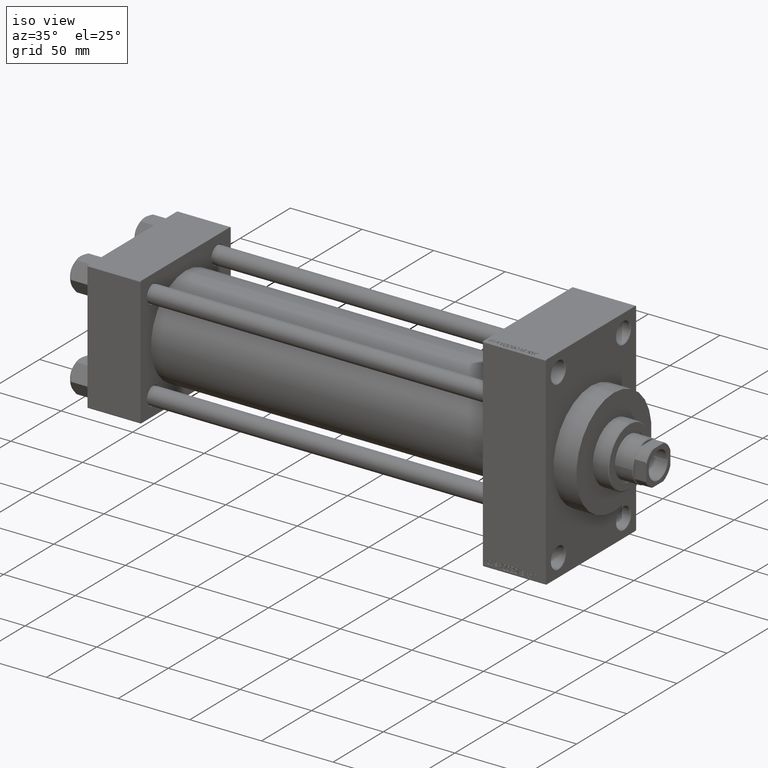
[diagram: clean part render]
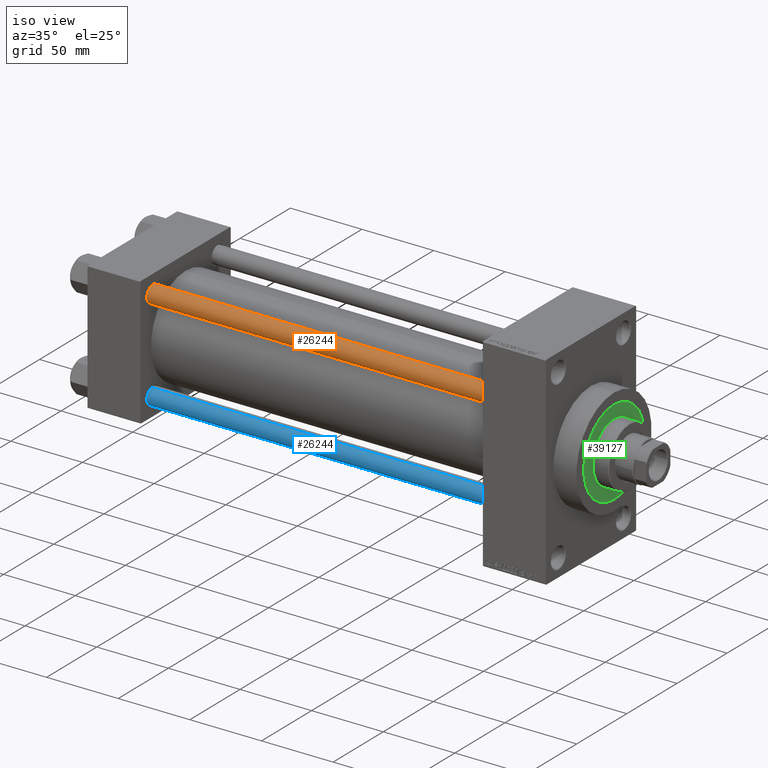
[diagram: same view with three faces highlighted in distinct colors, each labeled with its STEP entity id]
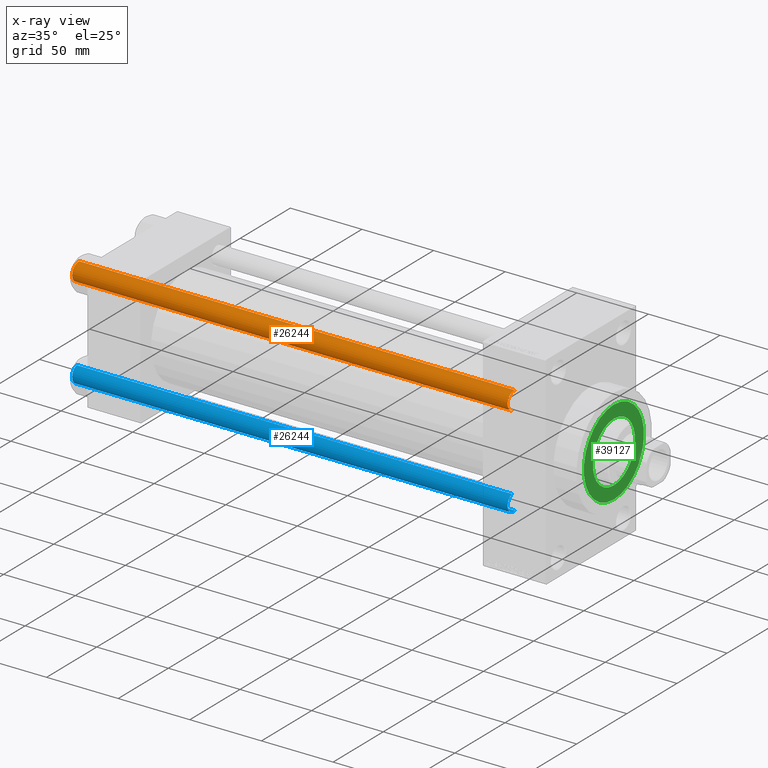
[diagram: x-ray of the same camera — body ghosted, the three highlighted faces saturated]
A machine part, iso view with three faces highlighted in distinct colors.
The next image is the same camera in x-ray (body ghosted, the three faces saturated) — at least one of them is partly hidden behind the body in this view.
Their STEP definitions:

[orange] entity #26244 — the highlighted cylindrical surface (edge-blend (fillet) strip) has radius 6 mm, axis along (1, 0, 0).
#65 = CARTESIAN_POINT ( 'NONE',  ( 0.000000000000000000, 0.000000000000000000, 305.0000000000000000 ) ) ;
#1472 = CARTESIAN_POINT ( 'NONE',  ( -6.000000000000000888, 0.000000000000000000, 304.5000000000000000 ) ) ;
#3404 = CYLINDRICAL_SURFACE ( 'NONE', #20236, 6.000000000000000888 ) ;
#3856 = DIRECTION ( 'NONE',  ( 1.000000000000000000, 0.000000000000000000, 0.000000000000000000 ) ) ;
#5360 = CARTESIAN_POINT ( 'NONE',  ( 6.000000000000000888, 7.347880794884120722E-16, 0.5000000000000004441 ) ) ;
#5750 = AXIS2_PLACEMENT_3D ( 'NONE', #31550, #12933, #31078 ) ;
#5988 = AXIS2_PLACEMENT_3D ( 'NONE', #40145, #15058, #3856 ) ;
#8247 = EDGE_CURVE ( 'NONE', #19464, #33449, #41802, .T. ) ;
#12933 = DIRECTION ( 'NONE',  ( 0.000000000000000000, 0.000000000000000000, -1.000000000000000000 ) ) ;
#13560 = CARTESIAN_POINT ( 'NONE',  ( -6.000000000000000888, 0.000000000000000000, 0.5000000000000004441 ) ) ;
#14081 = LINE ( 'NONE', #29125, #32040 ) ;
#14850 = FACE_OUTER_BOUND ( 'NONE', #35730, .T. ) ;
#15058 = DIRECTION ( 'NONE',  ( -0.000000000000000000, -0.000000000000000000, 1.000000000000000000 ) ) ;
#16302 = ORIENTED_EDGE ( 'NONE', *, *, #8247, .T. ) ;
#16529 = ORIENTED_EDGE ( 'NONE', *, *, #42837, .F. ) ;
#17326 = ORIENTED_EDGE ( 'NONE', *, *, #46188, .T. ) ;
#18102 = LINE ( 'NONE', #29559, #38798 ) ;
#19464 = VERTEX_POINT ( 'NONE', #5360 ) ;
#20236 = AXIS2_PLACEMENT_3D ( 'NONE', #65, #21551, #32528 ) ;
#21551 = DIRECTION ( 'NONE',  ( -0.000000000000000000, -0.000000000000000000, -1.000000000000000000 ) ) ;
#24595 = CARTESIAN_POINT ( 'NONE',  ( 6.000000000000000888, 7.347880794884120722E-16, 304.5000000000000000 ) ) ;
#26244 = ADVANCED_FACE ( 'NONE', ( #14850 ), #3404, .T. ) ;
#29125 = CARTESIAN_POINT ( 'NONE',  ( 6.000000000000000888, 7.347880794884120722E-16, 305.0000000000000000 ) ) ;
#29559 = CARTESIAN_POINT ( 'NONE',  ( -6.000000000000000888, 0.000000000000000000, 305.0000000000000000 ) ) ;
#30454 = EDGE_CURVE ( 'NONE', #33005, #35109, #43881, .T. ) ;
#31078 = DIRECTION ( 'NONE',  ( 1.000000000000000000, 0.000000000000000000, 0.000000000000000000 ) ) ;
#31550 = CARTESIAN_POINT ( 'NONE',  ( 0.000000000000000000, 0.000000000000000000, 304.5000000000000000 ) ) ;
#32040 = VECTOR ( 'NONE', #36276, 1000.000000000000000 ) ;
#32528 = DIRECTION ( 'NONE',  ( -1.000000000000000000, 0.000000000000000000, 0.000000000000000000 ) ) ;
#33005 = VERTEX_POINT ( 'NONE', #1472 ) ;
#33449 = VERTEX_POINT ( 'NONE', #13560 ) ;
#35109 = VERTEX_POINT ( 'NONE', #24595 ) ;
#35552 = ORIENTED_EDGE ( 'NONE', *, *, #30454, .T. ) ;
#35730 = EDGE_LOOP ( 'NONE', ( #35552, #17326, #16302, #16529 ) ) ;
#36276 = DIRECTION ( 'NONE',  ( -0.000000000000000000, -0.000000000000000000, -1.000000000000000000 ) ) ;
#36954 = DIRECTION ( 'NONE',  ( -0.000000000000000000, -0.000000000000000000, -1.000000000000000000 ) ) ;
#38798 = VECTOR ( 'NONE', #36954, 1000.000000000000000 ) ;
#40145 = CARTESIAN_POINT ( 'NONE',  ( 0.000000000000000000, 0.000000000000000000, 0.5000000000000004441 ) ) ;
#41802 = CIRCLE ( 'NONE', #5988, 6.000000000000000888 ) ;
#42837 = EDGE_CURVE ( 'NONE', #33005, #33449, #18102, .T. ) ;
#43881 = CIRCLE ( 'NONE', #5750, 6.000000000000000888 ) ;
#46188 = EDGE_CURVE ( 'NONE', #35109, #19464, #14081, .T. ) ;

[blue] entity #26244 — the highlighted cylindrical surface (edge-blend (fillet) strip) has radius 6 mm, axis along (-1, 0, 0).
#65 = CARTESIAN_POINT ( 'NONE',  ( 0.000000000000000000, 0.000000000000000000, 305.0000000000000000 ) ) ;
#1472 = CARTESIAN_POINT ( 'NONE',  ( -6.000000000000000888, 0.000000000000000000, 304.5000000000000000 ) ) ;
#3404 = CYLINDRICAL_SURFACE ( 'NONE', #20236, 6.000000000000000888 ) ;
#3856 = DIRECTION ( 'NONE',  ( 1.000000000000000000, 0.000000000000000000, 0.000000000000000000 ) ) ;
#5360 = CARTESIAN_POINT ( 'NONE',  ( 6.000000000000000888, 7.347880794884120722E-16, 0.5000000000000004441 ) ) ;
#5750 = AXIS2_PLACEMENT_3D ( 'NONE', #31550, #12933, #31078 ) ;
#5988 = AXIS2_PLACEMENT_3D ( 'NONE', #40145, #15058, #3856 ) ;
#8247 = EDGE_CURVE ( 'NONE', #19464, #33449, #41802, .T. ) ;
#12933 = DIRECTION ( 'NONE',  ( 0.000000000000000000, 0.000000000000000000, -1.000000000000000000 ) ) ;
#13560 = CARTESIAN_POINT ( 'NONE',  ( -6.000000000000000888, 0.000000000000000000, 0.5000000000000004441 ) ) ;
#14081 = LINE ( 'NONE', #29125, #32040 ) ;
#14850 = FACE_OUTER_BOUND ( 'NONE', #35730, .T. ) ;
#15058 = DIRECTION ( 'NONE',  ( -0.000000000000000000, -0.000000000000000000, 1.000000000000000000 ) ) ;
#16302 = ORIENTED_EDGE ( 'NONE', *, *, #8247, .T. ) ;
#16529 = ORIENTED_EDGE ( 'NONE', *, *, #42837, .F. ) ;
#17326 = ORIENTED_EDGE ( 'NONE', *, *, #46188, .T. ) ;
#18102 = LINE ( 'NONE', #29559, #38798 ) ;
#19464 = VERTEX_POINT ( 'NONE', #5360 ) ;
#20236 = AXIS2_PLACEMENT_3D ( 'NONE', #65, #21551, #32528 ) ;
#21551 = DIRECTION ( 'NONE',  ( -0.000000000000000000, -0.000000000000000000, -1.000000000000000000 ) ) ;
#24595 = CARTESIAN_POINT ( 'NONE',  ( 6.000000000000000888, 7.347880794884120722E-16, 304.5000000000000000 ) ) ;
#26244 = ADVANCED_FACE ( 'NONE', ( #14850 ), #3404, .T. ) ;
#29125 = CARTESIAN_POINT ( 'NONE',  ( 6.000000000000000888, 7.347880794884120722E-16, 305.0000000000000000 ) ) ;
#29559 = CARTESIAN_POINT ( 'NONE',  ( -6.000000000000000888, 0.000000000000000000, 305.0000000000000000 ) ) ;
#30454 = EDGE_CURVE ( 'NONE', #33005, #35109, #43881, .T. ) ;
#31078 = DIRECTION ( 'NONE',  ( 1.000000000000000000, 0.000000000000000000, 0.000000000000000000 ) ) ;
#31550 = CARTESIAN_POINT ( 'NONE',  ( 0.000000000000000000, 0.000000000000000000, 304.5000000000000000 ) ) ;
#32040 = VECTOR ( 'NONE', #36276, 1000.000000000000000 ) ;
#32528 = DIRECTION ( 'NONE',  ( -1.000000000000000000, 0.000000000000000000, 0.000000000000000000 ) ) ;
#33005 = VERTEX_POINT ( 'NONE', #1472 ) ;
#33449 = VERTEX_POINT ( 'NONE', #13560 ) ;
#35109 = VERTEX_POINT ( 'NONE', #24595 ) ;
#35552 = ORIENTED_EDGE ( 'NONE', *, *, #30454, .T. ) ;
#35730 = EDGE_LOOP ( 'NONE', ( #35552, #17326, #16302, #16529 ) ) ;
#36276 = DIRECTION ( 'NONE',  ( -0.000000000000000000, -0.000000000000000000, -1.000000000000000000 ) ) ;
#36954 = DIRECTION ( 'NONE',  ( -0.000000000000000000, -0.000000000000000000, -1.000000000000000000 ) ) ;
#38798 = VECTOR ( 'NONE', #36954, 1000.000000000000000 ) ;
#40145 = CARTESIAN_POINT ( 'NONE',  ( 0.000000000000000000, 0.000000000000000000, 0.5000000000000004441 ) ) ;
#41802 = CIRCLE ( 'NONE', #5988, 6.000000000000000888 ) ;
#42837 = EDGE_CURVE ( 'NONE', #33005, #33449, #18102, .T. ) ;
#43881 = CIRCLE ( 'NONE', #5750, 6.000000000000000888 ) ;
#46188 = EDGE_CURVE ( 'NONE', #35109, #19464, #14081, .T. ) ;

[green] entity #39127 — the highlighted planar face has unit normal (1, -0, -0).
#11 = DIRECTION ( 'NONE',  ( 0.000000000000000000, 0.000000000000000000, 1.000000000000000000 ) ) ;
#600 = AXIS2_PLACEMENT_3D ( 'NONE', #25221, #32145, #43124 ) ;
#3528 = CARTESIAN_POINT ( 'NONE',  ( 0.000000000000000000, 0.000000000000000000, 43.25999999999999801 ) ) ;
#3772 = DIRECTION ( 'NONE',  ( 0.000000000000000000, 0.000000000000000000, 1.000000000000000000 ) ) ;
#5229 = AXIS2_PLACEMENT_3D ( 'NONE', #13865, #11, #29373 ) ;
#6136 = ORIENTED_EDGE ( 'NONE', *, *, #40942, .F. ) ;
#6782 = EDGE_CURVE ( 'NONE', #34928, #11274, #20433, .T. ) ;
#10612 = CIRCLE ( 'NONE', #22841, 30.00000000000000000 ) ;
#11182 = CIRCLE ( 'NONE', #34819, 30.00000000000000000 ) ;
#11274 = VERTEX_POINT ( 'NONE', #22130 ) ;
#11586 = ORIENTED_EDGE ( 'NONE', *, *, #6782, .F. ) ;
#13865 = CARTESIAN_POINT ( 'NONE',  ( 0.000000000000000000, 0.000000000000000000, 43.25999999999999801 ) ) ;
#14794 = DIRECTION ( 'NONE',  ( 1.000000000000000000, 0.000000000000000000, 0.000000000000000000 ) ) ;
#18387 = DIRECTION ( 'NONE',  ( 0.000000000000000000, 0.000000000000000000, 1.000000000000000000 ) ) ;
#18482 = CARTESIAN_POINT ( 'NONE',  ( -30.00000000000000000, 0.000000000000000000, 43.25999999999999801 ) ) ;
#18959 = CIRCLE ( 'NONE', #5229, 21.00000000000000000 ) ;
#19511 = DIRECTION ( 'NONE',  ( 1.000000000000000000, 0.000000000000000000, 0.000000000000000000 ) ) ;
#19747 = DIRECTION ( 'NONE',  ( 0.000000000000000000, 0.000000000000000000, 1.000000000000000000 ) ) ;
#20148 = EDGE_CURVE ( 'NONE', #24126, #41077, #10612, .T. ) ;
#20433 = CIRCLE ( 'NONE', #600, 21.00000000000000000 ) ;
#21447 = FACE_OUTER_BOUND ( 'NONE', #42310, .T. ) ;
#21899 = ORIENTED_EDGE ( 'NONE', *, *, #20148, .T. ) ;
#21966 = CARTESIAN_POINT ( 'NONE',  ( 0.000000000000000000, 0.000000000000000000, 43.25999999999999801 ) ) ;
#22130 = CARTESIAN_POINT ( 'NONE',  ( 21.00000000000000000, 2.571758278209441661E-15, 43.25999999999999801 ) ) ;
#22841 = AXIS2_PLACEMENT_3D ( 'NONE', #45527, #19747, #19511 ) ;
#23917 = CARTESIAN_POINT ( 'NONE',  ( 30.00000000000000000, 3.673940397442059178E-15, 43.25999999999999801 ) ) ;
#24126 = VERTEX_POINT ( 'NONE', #18482 ) ;
#25032 = DIRECTION ( 'NONE',  ( 1.000000000000000000, 0.000000000000000000, -0.000000000000000000 ) ) ;
#25221 = CARTESIAN_POINT ( 'NONE',  ( 0.000000000000000000, 0.000000000000000000, 43.25999999999999801 ) ) ;
#29373 = DIRECTION ( 'NONE',  ( 1.000000000000000000, 0.000000000000000000, 0.000000000000000000 ) ) ;
#32145 = DIRECTION ( 'NONE',  ( 0.000000000000000000, 0.000000000000000000, 1.000000000000000000 ) ) ;
#33208 = EDGE_CURVE ( 'NONE', #41077, #24126, #11182, .T. ) ;
#34273 = ORIENTED_EDGE ( 'NONE', *, *, #33208, .T. ) ;
#34819 = AXIS2_PLACEMENT_3D ( 'NONE', #21966, #18387, #14794 ) ;
#34928 = VERTEX_POINT ( 'NONE', #41643 ) ;
#36241 = FACE_BOUND ( 'NONE', #45835, .T. ) ;
#39127 = ADVANCED_FACE ( 'NONE', ( #36241, #21447 ), #46993, .T. ) ;
#39581 = AXIS2_PLACEMENT_3D ( 'NONE', #3528, #3772, #25032 ) ;
#40942 = EDGE_CURVE ( 'NONE', #11274, #34928, #18959, .T. ) ;
#41077 = VERTEX_POINT ( 'NONE', #23917 ) ;
#41643 = CARTESIAN_POINT ( 'NONE',  ( -21.00000000000000000, 0.000000000000000000, 43.25999999999999801 ) ) ;
#42310 = EDGE_LOOP ( 'NONE', ( #21899, #34273 ) ) ;
#43124 = DIRECTION ( 'NONE',  ( 1.000000000000000000, 0.000000000000000000, 0.000000000000000000 ) ) ;
#45527 = CARTESIAN_POINT ( 'NONE',  ( 0.000000000000000000, 0.000000000000000000, 43.25999999999999801 ) ) ;
#45835 = EDGE_LOOP ( 'NONE', ( #11586, #6136 ) ) ;
#46993 = PLANE ( 'NONE',  #39581 ) ;